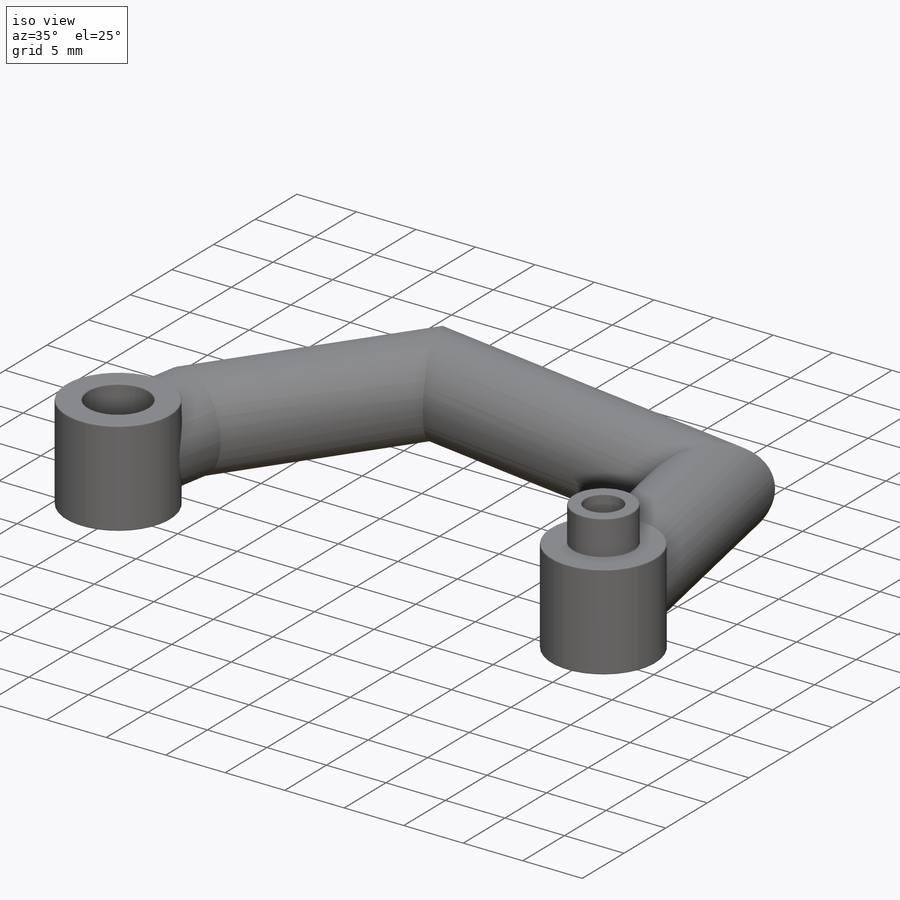
[diagram: iso view]
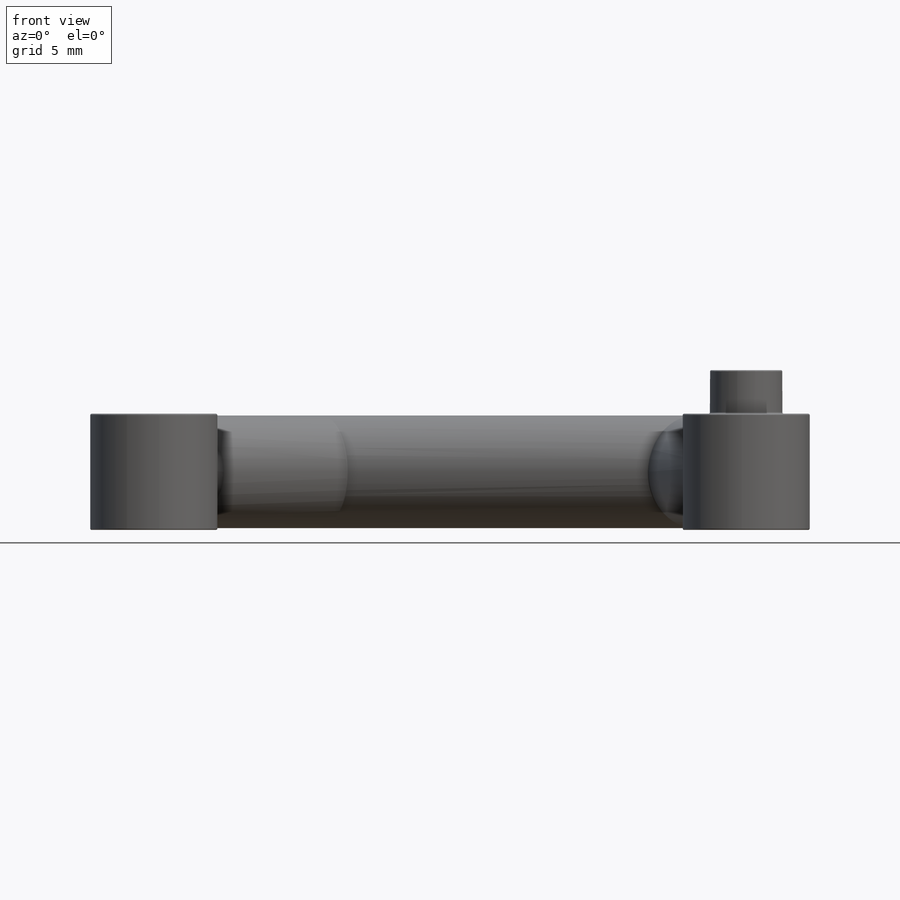
[diagram: front view]
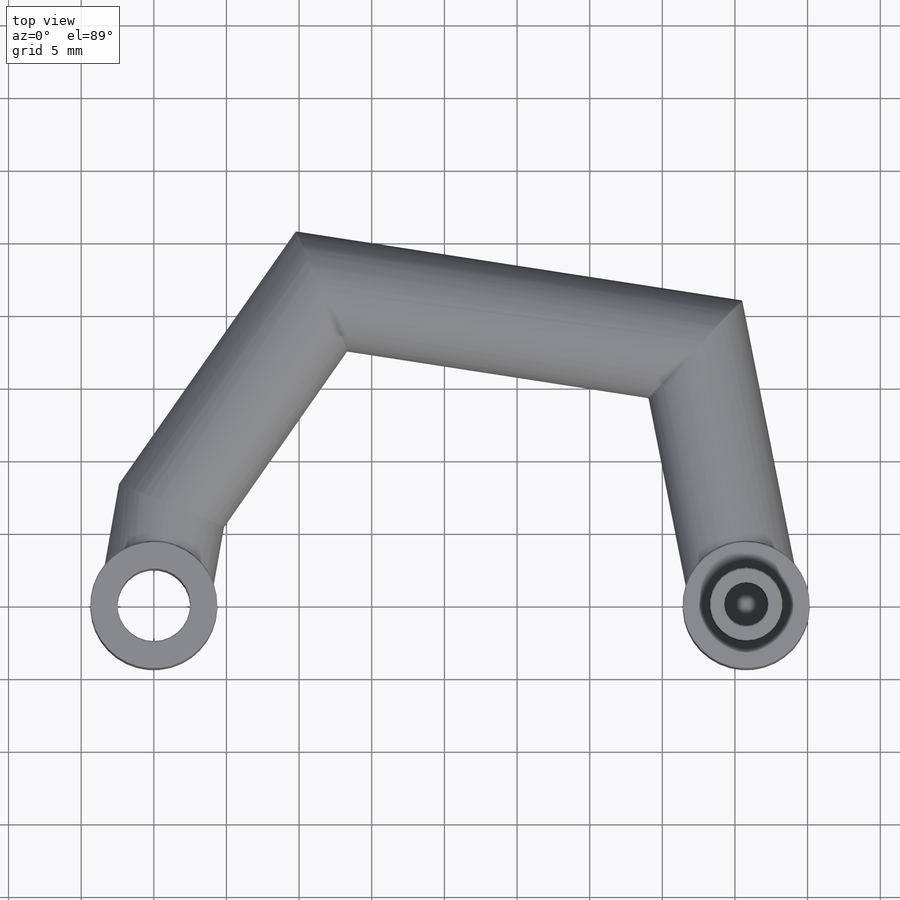
[diagram: top view]
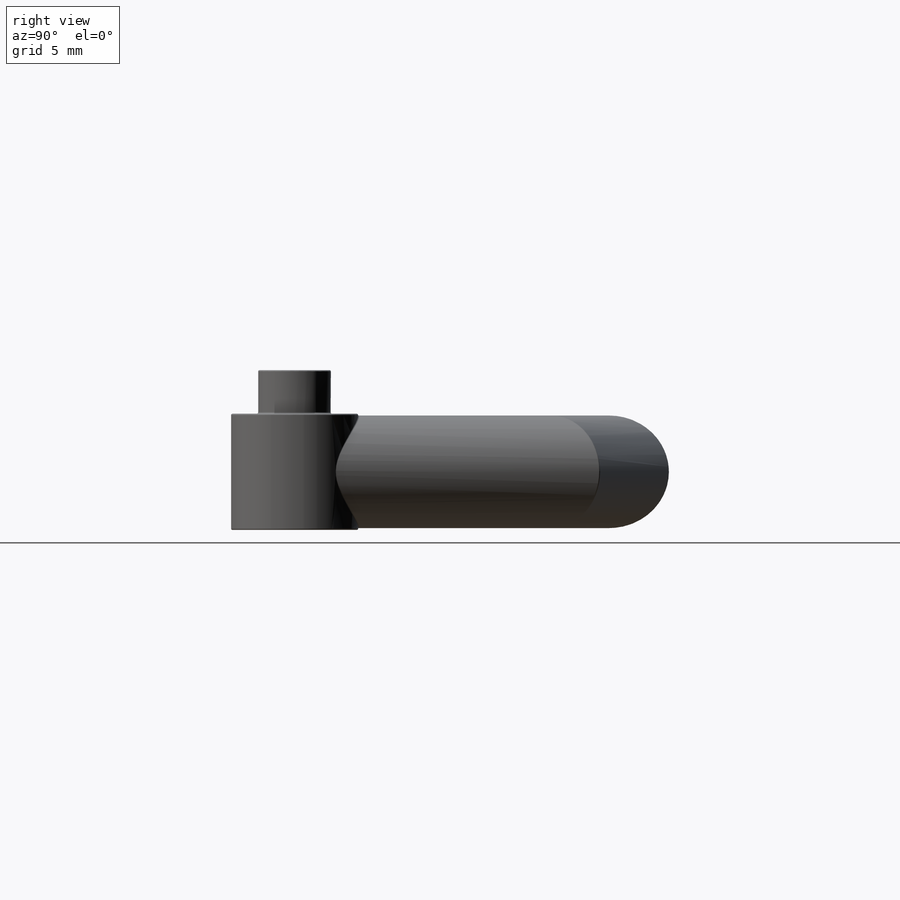
[diagram: right view]
SOLIDWORKS PART (.sldprt)
format: sldprt  version: not decoded by parser v0  size: 500,736 bytes
history: native  units: mm
features: sketch x6, fillet x3, extrude x2, cut_extrude x2, material x1, sweep x1 (+11 scaffold rows collapsed)
feature tree (26):
  scaffold x11  (default folders/planes/origin — collapsed)
  material  "Material <not specified>"
  sketch  "Sketch2"  dims[D1=8.75mm D2=8.75mm D5=5.0mm D3=0.0mm D4=40.77mm]
  extrude  "Boss-Extrude1"  Depth=8mm
  sketch  "Sketch3"  dims[D1=7.75mm D2=0.0mm D3=4.0mm]
  sketch  "Sketch4"  dims[c1.D1=7.0mm c1.D2=18.0mm c1.D3=23.0mm c1.D4=0.0mm c1.D5=0.0mm c1.D6=18.0mm c1.D7=7.0mm c2.D7=80.0deg c2.D8=18.0mm c3.D8=155.0deg c3.D3=23.0mm c4.D3=110.0deg]
  sketch  "Sketch5"  dims[D1=5.0mm]
  sketch  "Sketch6"  dims[D1=5.75mm]
  sketch  "Sketch7"  dims[D1=5.0mm D2=3.0mm]
  sweep  "Sweep1"
  cut_extrude  "Cut-Extrude1"  Depth=10mm
  cut_extrude  "Cut-Extrude2"  Depth=6mm
  extrude  "Boss-Extrude3"  Depth=3mm
  fillet  "Fillet1"  Radius=0.1mm
  fillet  "Fillet2"  Radius=0.1mm
  fillet  "Fillet3"  Radius=0.1mm
decode coverage: 13 of 14 modeling features carry decoded parameters
note: suppression state not decoded; provenance and decode notes live in map.json
